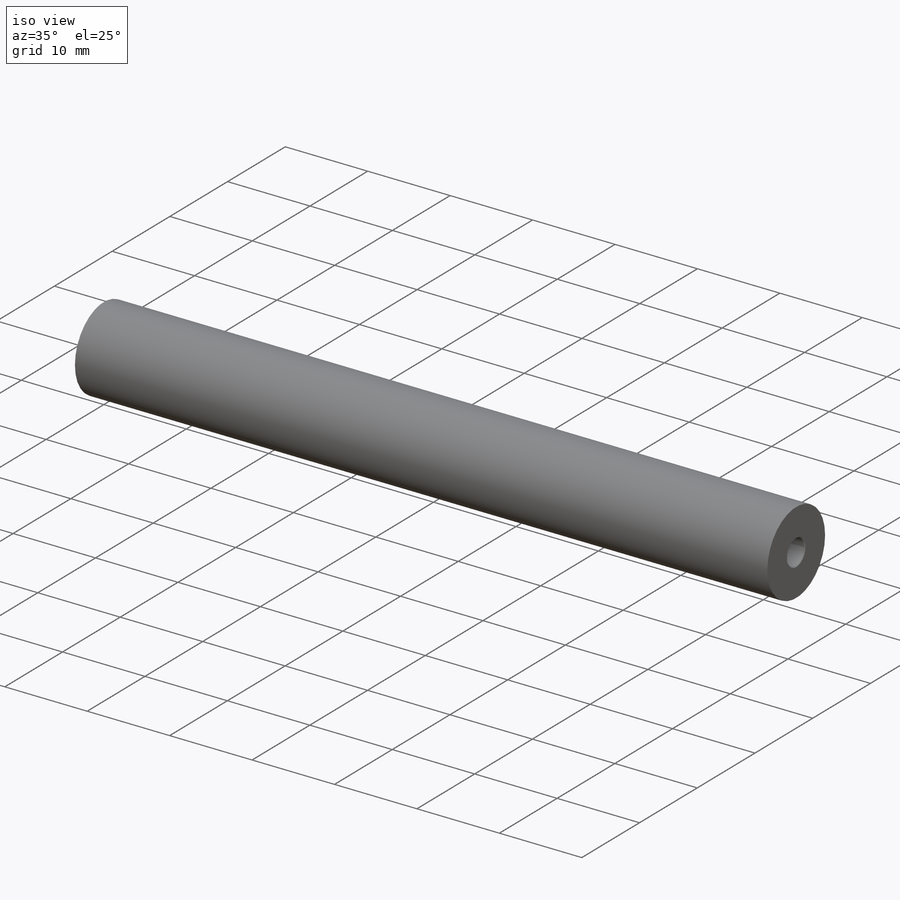
[diagram: iso view]
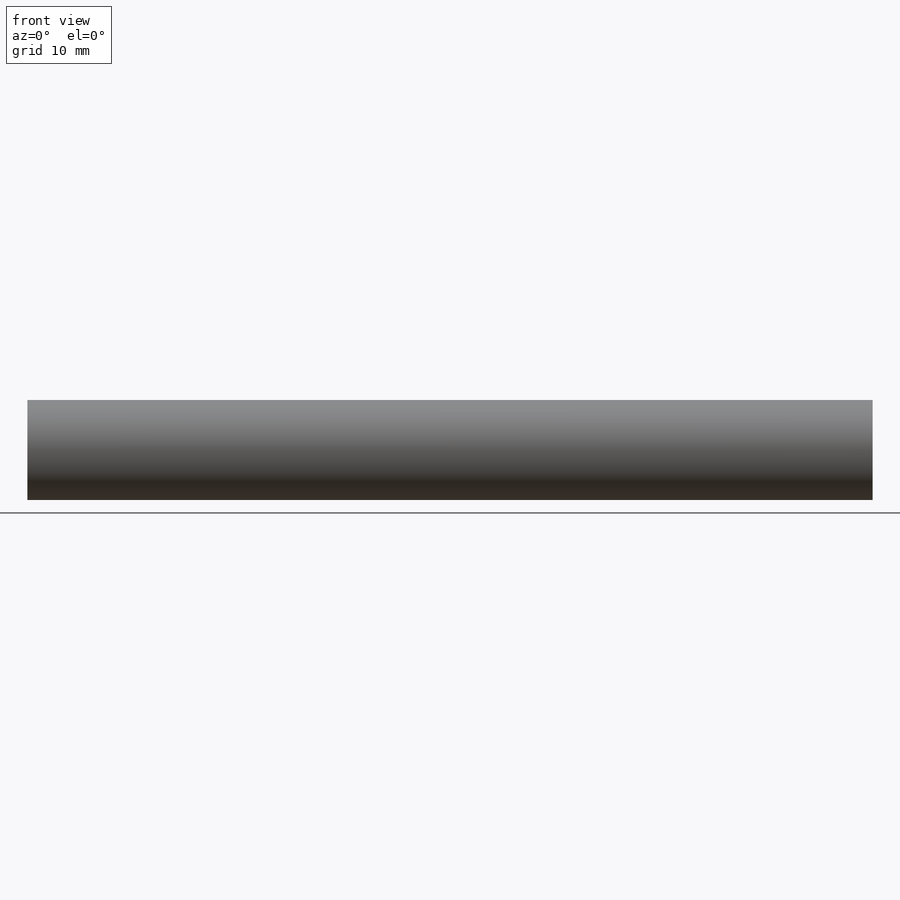
[diagram: front view]
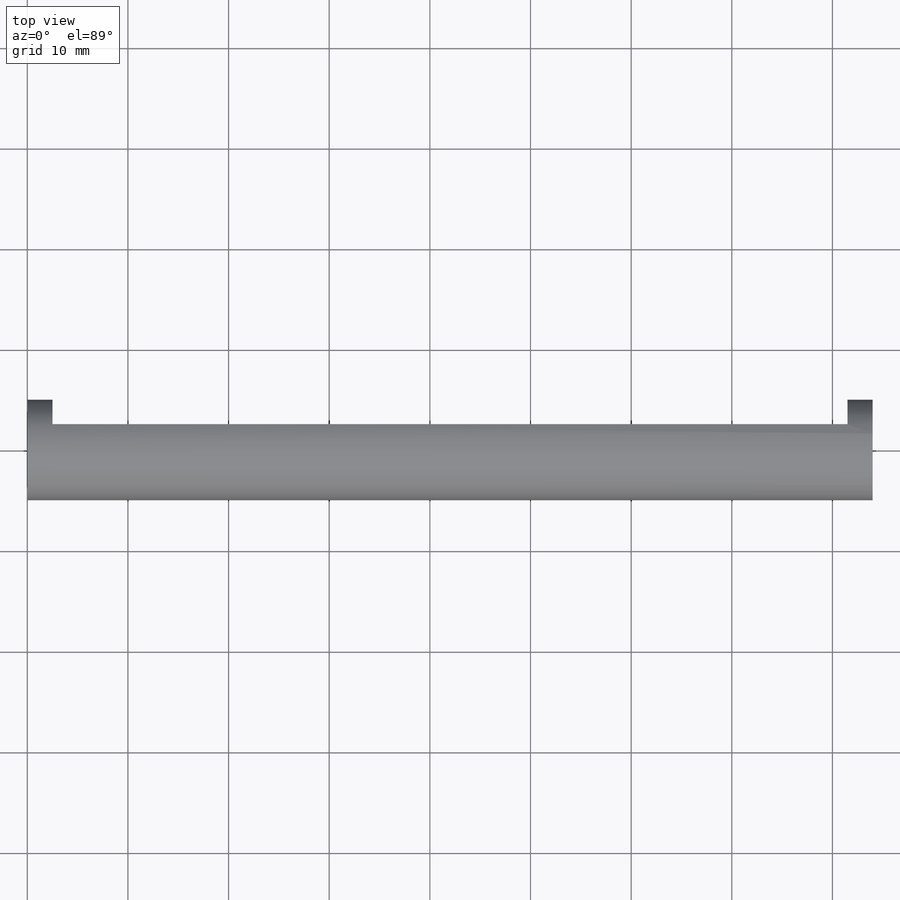
[diagram: top view]
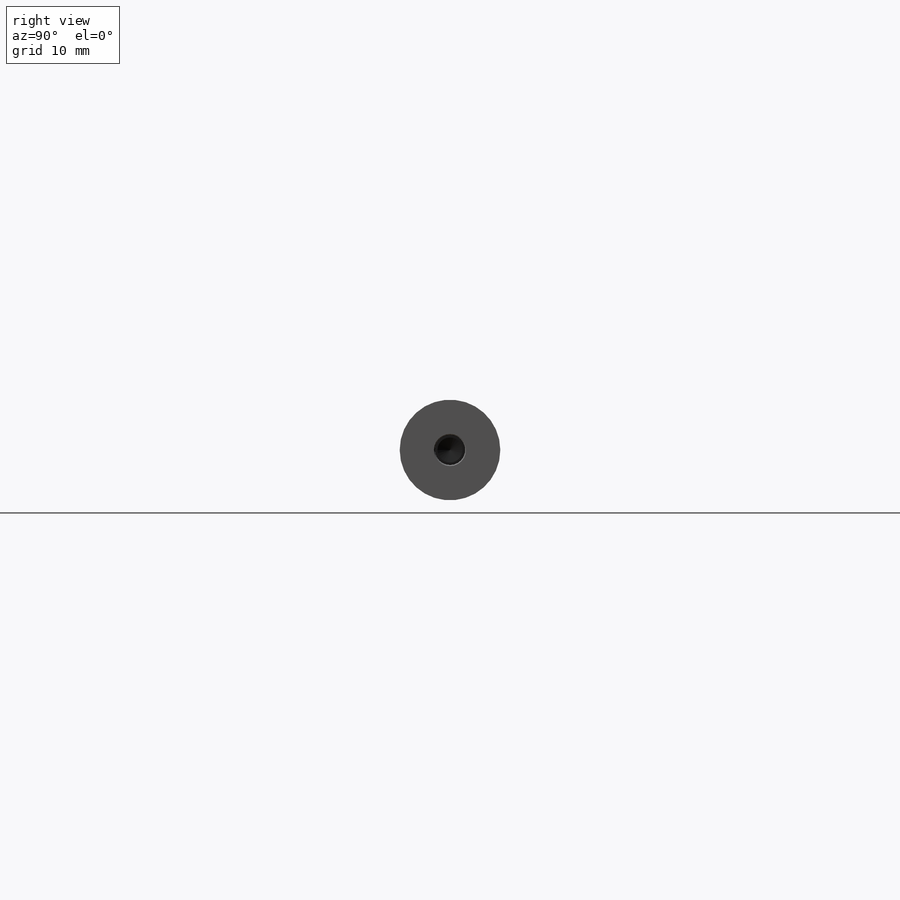
[diagram: right view]
SOLIDWORKS PART (.sldprt)
format: sldprt  version: not decoded by parser v0  size: 231,936 bytes
history: native  units: mm
features: sketch x6, hole x2, material x1, extrude x1, cut_extrude x1 (+14 scaffold rows collapsed)
feature tree (25):
  scaffold x14  (default folders/planes/origin — collapsed)
  material  "2024-T4"
  sketch  "Эскиз1"  dims[D1=10.0mm]
  extrude  "Бобышка-Вытянуть1"  Depth=84mm
  hole  "Отверстие обработанное метчиком M31"  [1 undecoded]
  sketch  "Эскиз3"
  sketch  "Эскиз2"  dims[hole-wizard template sketch: 27 standard entries collapsed; hole parameters kept: c8.Глубина сверла=12.0mm c8.Диаметр резьбы=3.0mm c8.Глубина резьбы=9.0mm c8.Диаметр передней зенковки=3.2mm c8.D6=~4.399409mm c8.Угол передней зенковки=90.0deg c8.D7=~14.816244mm c8.Угол заточки сверла=118.0deg]
  hole  "Отверстие обработанное метчиком M32"  [1 undecoded]
  sketch  "Эскиз5"
  sketch  "Эскиз4"  dims[hole-wizard template sketch: 27 standard entries collapsed; hole parameters kept: c8.Глубина сверла=12.0mm c8.Диаметр резьбы=3.0mm c8.Глубина резьбы=9.0mm c8.Диаметр передней зенковки=3.2mm c8.D6=~4.399409mm c8.Угол передней зенковки=90.0deg c8.D7=~14.816244mm c8.Угол заточки сверла=118.0deg]
  sketch  "Эскиз6"  dims[D1=2.5mm D2=2.5mm D3=2.5mm]
  cut_extrude  "Вырез-Вытянуть1"  [1 undecoded]
decode coverage: 5 of 10 modeling features carry decoded parameters
note: ~ marks probable driven/reference dimensions
note: 3 parameter values undecoded
summary: no parameter record found for 3 features
note: suppression state not decoded; provenance and decode notes live in map.json
